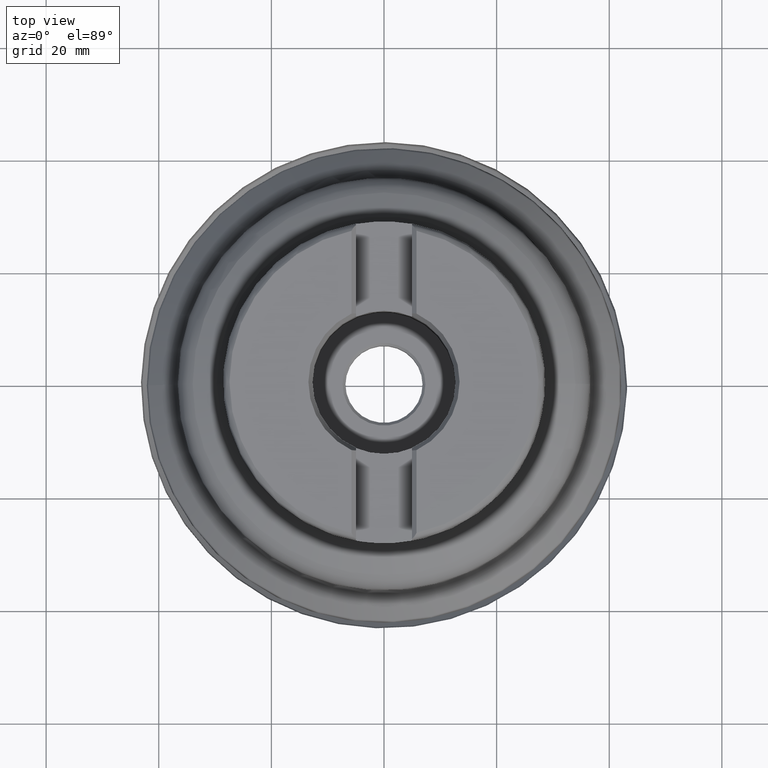
[diagram: clean part render]
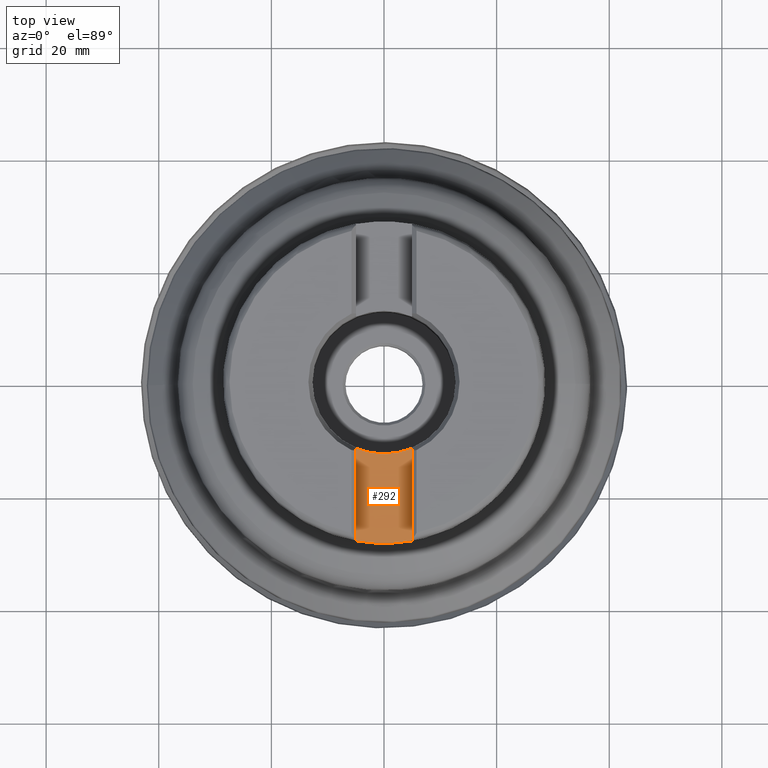
[diagram: same view with one face highlighted and labeled with its STEP entity id]
A machine part, top view. The second image highlights one B-rep face of the part: STEP entity #292.
In plain terms, the highlighted planar face has unit normal (0, 0, 1).
Its self-contained STEP definition (entity closure, byte-faithful):
#176=PLANE('',#1094);
#190=FACE_OUTER_BOUND('',#494,.T.);
#221=LINE('',#1815,#249);
#223=LINE('',#1823,#251);
#249=VECTOR('',#1278,1.);
#251=VECTOR('',#1282,1.);
#292=ADVANCED_FACE('',(#190),#176,.T.);
#494=EDGE_LOOP('',(#650,#651,#652,#653));
#650=ORIENTED_EDGE('',*,*,#843,.T.);
#651=ORIENTED_EDGE('',*,*,#901,.T.);
#652=ORIENTED_EDGE('',*,*,#856,.T.);
#653=ORIENTED_EDGE('',*,*,#904,.F.);
#762=VERTEX_POINT('',#1514);
#763=VERTEX_POINT('',#1516);
#769=VERTEX_POINT('',#1529);
#775=VERTEX_POINT('',#1541);
#843=EDGE_CURVE('',#763,#762,#938,.T.);
#856=EDGE_CURVE('',#769,#775,#945,.T.);
#901=EDGE_CURVE('',#762,#769,#221,.T.);
#904=EDGE_CURVE('',#763,#775,#223,.T.);
#938=CIRCLE('',#1040,28.575);
#945=CIRCLE('',#1048,12.7);
#1040=AXIS2_PLACEMENT_3D('',#1515,#1157,#1158);
#1048=AXIS2_PLACEMENT_3D('',#1542,#1179,#1180);
#1094=AXIS2_PLACEMENT_3D('',#1825,#1285,#1286);
#1157=DIRECTION('',(1.17145536458253E-15,1.33226762955019E-15,1.));
#1158=DIRECTION('',(-1.,3.1641356201817E-15,1.21415466385078E-15));
#1179=DIRECTION('',(-1.17145536458253E-15,-1.33226762955019E-15,-1.));
#1180=DIRECTION('',(-1.,3.1641356201817E-15,1.09273919746571E-15));
#1278=DIRECTION('',(3.16413562018169E-15,1.,-1.33226762955019E-15));
#1282=DIRECTION('',(3.16413562018169E-15,1.,-1.33226762955019E-15));
#1285=DIRECTION('',(1.17145536458253E-15,1.33226762955019E-15,1.));
#1286=DIRECTION('',(-1.,3.1641356201817E-15,1.17267306976032E-15));
#1514=CARTESIAN_POINT('',(4.96499999999995,-28.1403518101675,38.89));
#1515=CARTESIAN_POINT('',(4.55578991286145E-14,5.18118881132068E-14,38.89));
#1516=CARTESIAN_POINT('',(-4.96500000000004,-28.1403518101675,38.89));
#1529=CARTESIAN_POINT('',(4.965,-11.6892589585482,38.89));
#1541=CARTESIAN_POINT('',(-4.96499999999999,-11.6892589585482,38.89));
#1542=CARTESIAN_POINT('',(4.55578991286145E-14,5.18118881132068E-14,38.89));
#1815=CARTESIAN_POINT('',(4.96500000000016,38.,38.8899999999999));
#1823=CARTESIAN_POINT('',(-4.96499999999983,38.0000000000001,38.89));
#1825=CARTESIAN_POINT('',(4.96500000000016,38.,38.8899999999999));